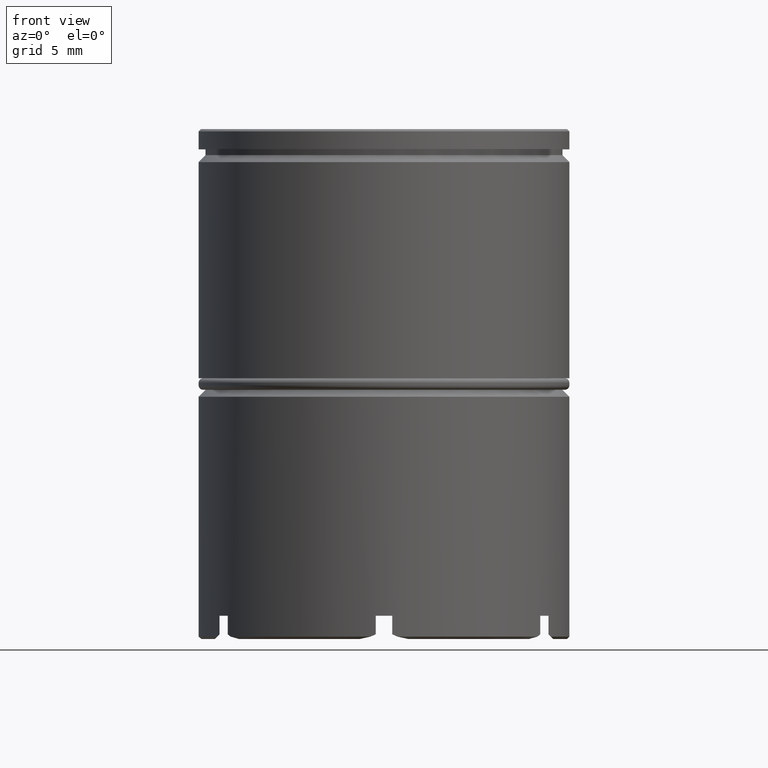
[diagram: clean part render]
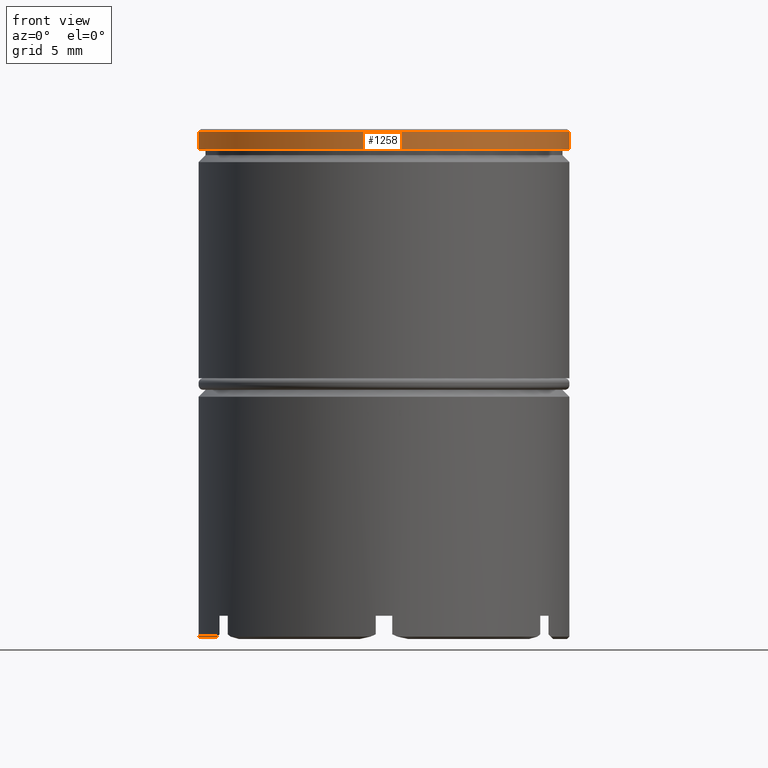
[diagram: same view with one face highlighted and labeled with its STEP entity id]
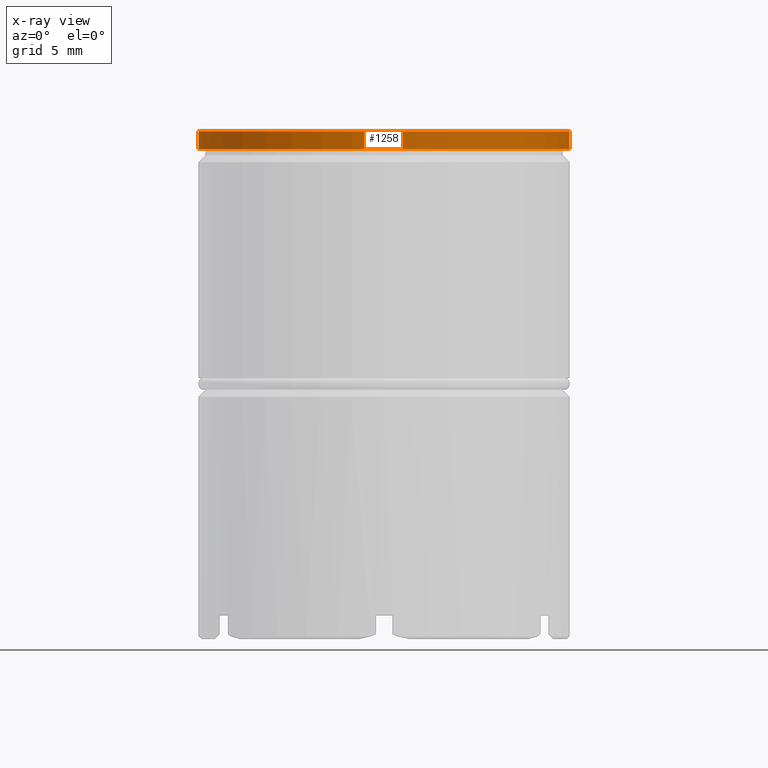
[diagram: x-ray of the same camera — body ghosted, the highlighted face saturated]
A machine part, front view. The second image highlights one B-rep face of the part: STEP entity #1258.
The next image is the same camera in x-ray: the body ghosted, the highlighted face saturated — about 0% of this face is hidden behind the body in this view.
In plain terms, the highlighted cylindrical surface (partial cylindrical patch) has radius 8 mm, axis along (-0, -0, 1).
Its self-contained STEP definition (entity closure, byte-faithful):
#44 = CARTESIAN_POINT ( 'NONE',  ( -8.000000000000000000, 9.797174393178825657E-16, 0.000000000000000000 ) ) ;
#48 = AXIS2_PLACEMENT_3D ( 'NONE', #1033, #1365, #262 ) ;
#218 = EDGE_LOOP ( 'NONE', ( #1023, #654, #485, #1533 ) ) ;
#258 = DIRECTION ( 'NONE',  ( -0.000000000000000000, -0.000000000000000000, 1.000000000000000000 ) ) ;
#262 = DIRECTION ( 'NONE',  ( 1.000000000000000000, 0.000000000000000000, 0.000000000000000000 ) ) ;
#327 = CARTESIAN_POINT ( 'NONE',  ( -8.000000000000000000, 9.797174393178825657E-16, -0.8749999999999998890 ) ) ;
#378 = CYLINDRICAL_SURFACE ( 'NONE', #440, 8.000000000000000000 ) ;
#404 = CARTESIAN_POINT ( 'NONE',  ( 0.000000000000000000, 0.000000000000000000, -0.8749999999999998890 ) ) ;
#440 = AXIS2_PLACEMENT_3D ( 'NONE', #882, #258, #1385 ) ;
#442 = CARTESIAN_POINT ( 'NONE',  ( 8.000000000000000000, 0.000000000000000000, 0.000000000000000000 ) ) ;
#485 = ORIENTED_EDGE ( 'NONE', *, *, #1039, .T. ) ;
#493 = EDGE_CURVE ( 'NONE', #554, #971, #999, .T. ) ;
#514 = VECTOR ( 'NONE', #945, 1000.000000000000000 ) ;
#535 = LINE ( 'NONE', #44, #514 ) ;
#540 = VECTOR ( 'NONE', #955, 1000.000000000000000 ) ;
#554 = VERTEX_POINT ( 'NONE', #693 ) ;
#654 = ORIENTED_EDGE ( 'NONE', *, *, #806, .T. ) ;
#681 = VERTEX_POINT ( 'NONE', #327 ) ;
#693 = CARTESIAN_POINT ( 'NONE',  ( 8.000000000000000000, 0.000000000000000000, -0.09999999999999592548 ) ) ;
#801 = CARTESIAN_POINT ( 'NONE',  ( -8.000000000000000000, 9.797174393178825657E-16, -0.09999999999999592548 ) ) ;
#806 = EDGE_CURVE ( 'NONE', #681, #1442, #1262, .T. ) ;
#882 = CARTESIAN_POINT ( 'NONE',  ( 0.000000000000000000, 0.000000000000000000, 0.000000000000000000 ) ) ;
#907 = EDGE_CURVE ( 'NONE', #681, #971, #535, .T. ) ;
#945 = DIRECTION ( 'NONE',  ( -0.000000000000000000, -0.000000000000000000, 1.000000000000000000 ) ) ;
#955 = DIRECTION ( 'NONE',  ( -0.000000000000000000, -0.000000000000000000, 1.000000000000000000 ) ) ;
#971 = VERTEX_POINT ( 'NONE', #801 ) ;
#999 = CIRCLE ( 'NONE', #48, 8.000000000000000000 ) ;
#1023 = ORIENTED_EDGE ( 'NONE', *, *, #907, .F. ) ;
#1033 = CARTESIAN_POINT ( 'NONE',  ( 0.000000000000000000, 0.000000000000000000, -0.09999999999999592548 ) ) ;
#1039 = EDGE_CURVE ( 'NONE', #1442, #554, #1584, .T. ) ;
#1136 = FACE_OUTER_BOUND ( 'NONE', #218, .T. ) ;
#1141 = DIRECTION ( 'NONE',  ( -0.000000000000000000, -0.000000000000000000, 1.000000000000000000 ) ) ;
#1258 = ADVANCED_FACE ( 'NONE', ( #1136 ), #378, .T. ) ;
#1262 = CIRCLE ( 'NONE', #1477, 8.000000000000000000 ) ;
#1299 = DIRECTION ( 'NONE',  ( 1.000000000000000000, 0.000000000000000000, 0.000000000000000000 ) ) ;
#1365 = DIRECTION ( 'NONE',  ( 0.000000000000000000, 0.000000000000000000, -1.000000000000000000 ) ) ;
#1385 = DIRECTION ( 'NONE',  ( 1.000000000000000000, 0.000000000000000000, 0.000000000000000000 ) ) ;
#1420 = CARTESIAN_POINT ( 'NONE',  ( 8.000000000000000000, 0.000000000000000000, -0.8749999999999998890 ) ) ;
#1442 = VERTEX_POINT ( 'NONE', #1420 ) ;
#1477 = AXIS2_PLACEMENT_3D ( 'NONE', #404, #1141, #1299 ) ;
#1533 = ORIENTED_EDGE ( 'NONE', *, *, #493, .T. ) ;
#1584 = LINE ( 'NONE', #442, #540 ) ;